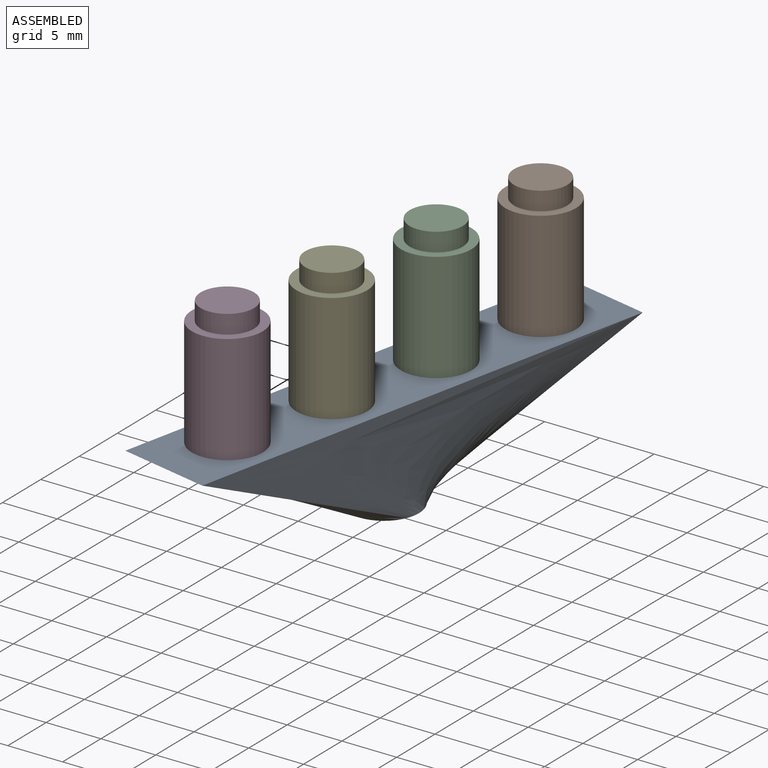
[diagram: assembled view]
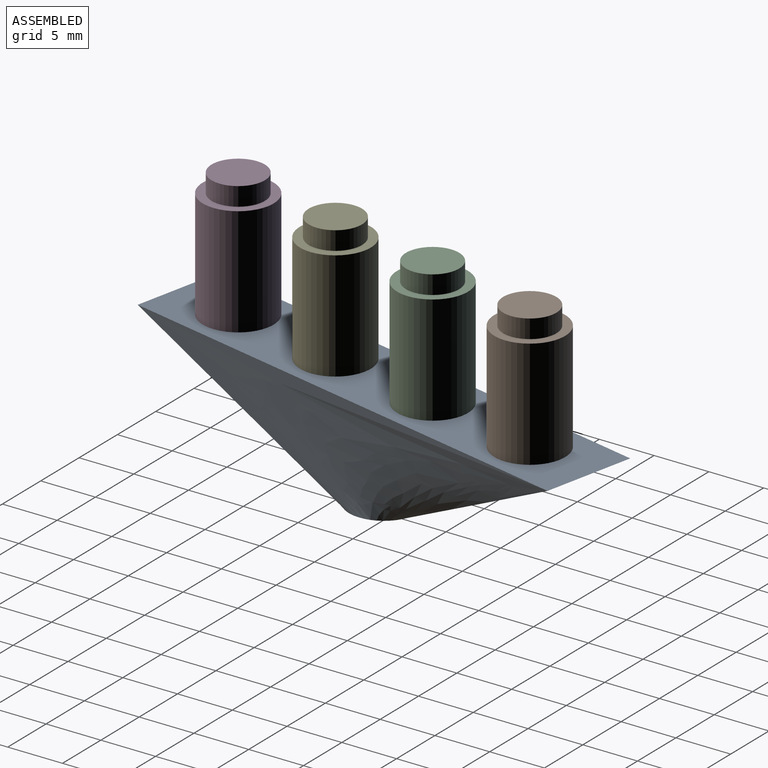
[diagram: assembled view, second angle]
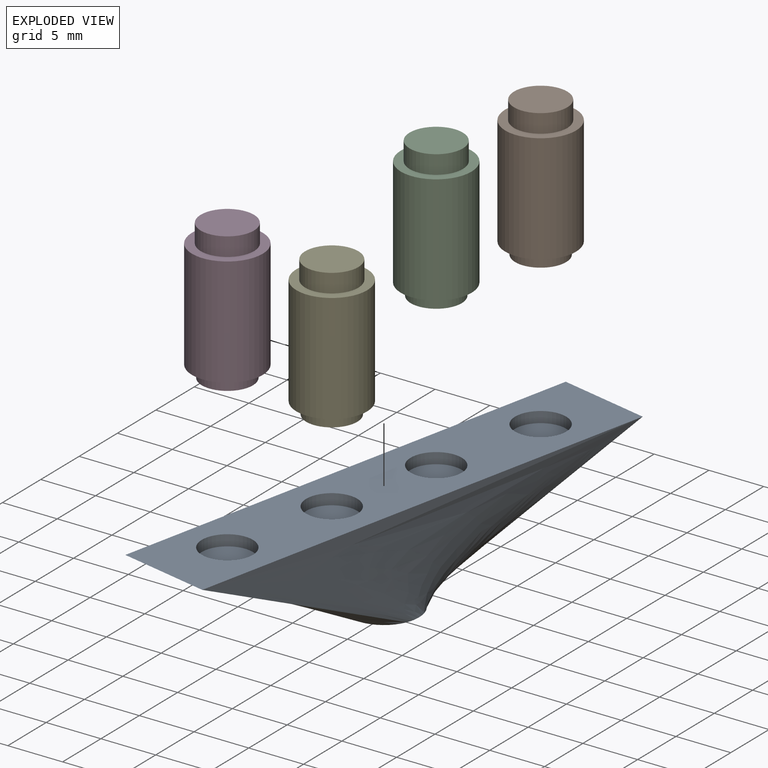
[diagram: exploded view]
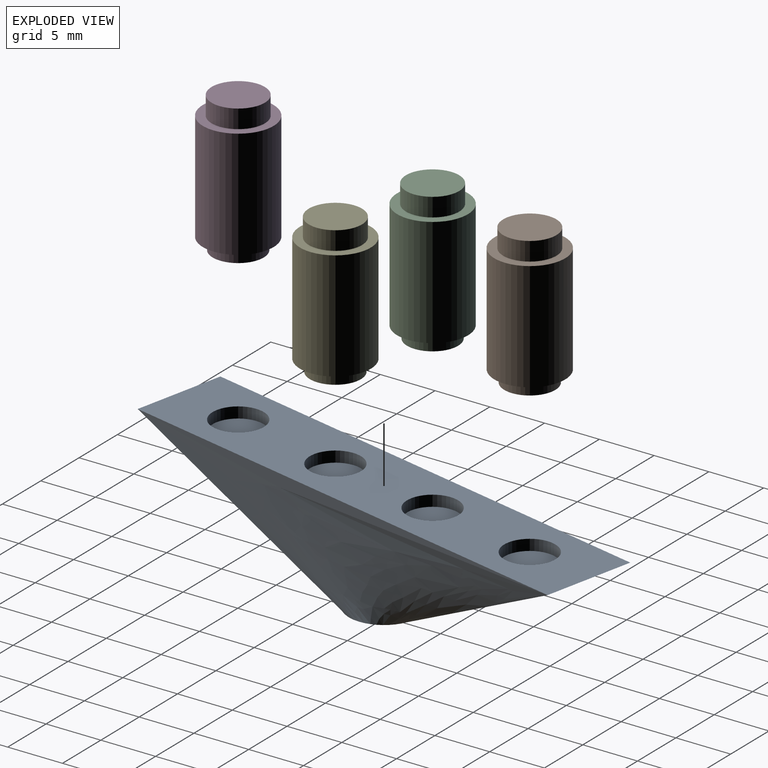
[diagram: exploded view, second angle]
ASSEMBLY  parts=5 mates=4
PART A: 16 faces, bbox 45x8.4x10 mm
  f0: plane 45x8.45mm, normal (0,0,1), area 311.5mm2, adj f2,f3,f4,f5,f8,f10,f12,f14
  f1: plane 6.42x6.42mm, normal (0,0,-1), area 12.6mm2, adj f2,f3,f4,f5,f6
  f2: bspline ~45x10mm, area 254mm2, adj f0,f1,f3,f5
  f3: bspline ~21.91x10mm, area 137.4mm2, adj f0,f1,f2,f4
  f4: bspline ~45x10mm, area 254mm2, adj f0,f1,f3,f5
  f5: bspline ~21.91x10mm, area 137.4mm2, adj f0,f1,f2,f4
  f6: cylinder r=2.5mm len=5mm, axis (0,0,-1), area 78.5mm2, adj f1,f7
  f7: plane 5x5mm, normal (0,0,-1), area 19.6mm2, adj f6
  f8: cylinder r=2.33mm len=4.67mm, axis (0,0,1), area 14.7mm2, adj f0,f9
  f9: plane 4.67x4.67mm, normal (0,0,1), area 17.1mm2, adj f8
  f10: cylinder r=2.33mm len=4.67mm, axis (0,0,1), area 14.7mm2, adj f0,f11
  f11: plane 4.67x4.67mm, normal (0,0,1), area 17.1mm2, adj f10
  f12: cylinder r=2.33mm len=4.67mm, axis (0,0,1), area 14.7mm2, adj f0,f13
  f13: plane 4.67x4.67mm, normal (0,0,1), area 17.1mm2, adj f12
  f14: cylinder r=2.33mm len=4.67mm, axis (0,0,1), area 14.7mm2, adj f0,f15
  f15: plane 4.67x4.67mm, normal (0,0,1), area 17.1mm2, adj f14
PART B: 7 faces, bbox 6.5x6.5x12.8 mm
  f0: cylinder r=3.23mm len=10mm, axis (0,0,-1), area 203.3mm2, adj f1,f2
  f1: plane 6.47x6.47mm, normal (0,0,1), area 15.7mm2, adj f0,f3
  f2: plane 6.47x6.47mm, normal (0,0,-1), area 14.3mm2, adj f0,f5
  f3: cylinder r=2.33mm len=4.67mm, axis (0,0,-1), area 16.1mm2, adj f1,f4
  f4: plane 4.67x4.67mm, normal (0,0,1), area 17.1mm2, adj f3
  f5: cylinder r=2.44mm len=4.87mm, axis (0,0,1), area 26mm2, adj f2,f6
  f6: plane 4.87x4.87mm, normal (0,0,-1), area 18.6mm2, adj f5
PART C: same geometry as B
PART D: same geometry as B
PART E: same geometry as B
PLACE A rot(axis=(0,0,-1),102.1deg) t=(24.96,29.83,4.09)mm
PLACE B rot(axis=(-0.63,0.78,0),180deg) t=(28.31,45.48,24.19)mm
PLACE C rot(axis=(-0.63,0.78,0),180deg) t=(26.08,35.04,24.19)mm
PLACE D rot(axis=(-0.63,0.78,0),180deg) t=(21.62,14.17,24.19)mm
PLACE E rot(axis=(-0.63,0.78,0),180deg) t=(23.85,24.61,24.19)mm
MATE fastened D.f3 <-> A.f12  axis (0,0,-1) through (21.62,14.17,13.09)mm
MATE fastened C.f3 <-> A.f8  axis (0,0,-1) through (26.08,35.04,13.09)mm
MATE fastened A.f14 <-> B.f3  axis (0,0,1) through (28.31,45.48,13.09)mm
MATE fastened E.f3 <-> A.f10  axis (0,0,-1) through (23.85,24.61,13.09)mm
